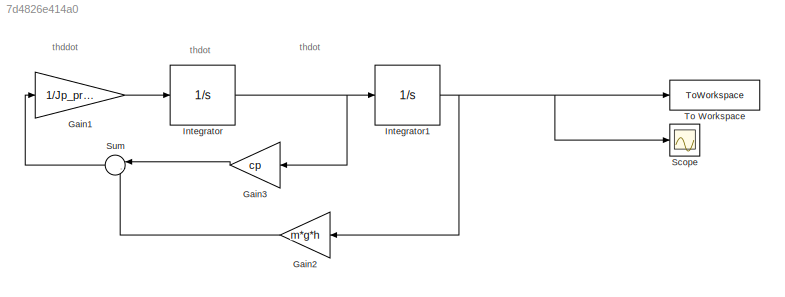
MODEL slx_7d4826e414a0
KIND model
CONFIG AbsTol = auto
CONFIG EnableMultiTasking = off
CONFIG FixedStep = auto
CONFIG MaxStep = auto
CONFIG MinStep = auto
CONFIG RelTol = 1e-6
CONFIG SampleTimeConstraint = Unconstrained
CONFIG SolverName = VariableStepAuto
CONFIG StartTime = 0.0
CONFIG StopTime = 30
BLOCK [Gain] Gain1
  Gain = 1/Jp_prime
BLOCK [Gain] Gain2
  Gain = m*g*h
BLOCK [Gain] Gain3
  Gain = cp
BLOCK [Integrator] Integrator
  Ports = [1, 1]
BLOCK [Integrator] Integrator1
  InitialCondition = th0
  Ports = [1, 1]
BLOCK [Scope] Scope
  Floating = off
  NumInputPorts = 1
  Ports = [1]
  ScopeSpecificationString = Simulink.scopes.TimeScopeBlockCfg('CurrentConfiguration', extmgr.ConfigurationSet(extmgr.Configuration('Core','General UI',true),extmgr.Configuration('Core','Source UI',true),extmgr.Configuration('Sources','WiredSimulink',true),extmgr.Configuration('Visuals','Time Domain',true,'SerializedDisplays',{struct('MinYLimReal','-0.3531','MaxYLimReal','0.38182','YLabelReal','','MinYLimMag','0.00000','MaxYL...<+1359ch>
BLOCK [Sum] Sum
  Inputs = |--
  Ports = [2, 1]
BLOCK [ToWorkspace] To Workspace
  FixptAsFi = on
  MaxDataPoints = inf
  Ports = [1]
  SampleTime = -1
  SaveFormat = Timeseries
  VariableName = th
ANNOTATION (root): thddot
ANNOTATION (root): thdot
LINE Gain1:1 -> Integrator:1
LINE Gain2:1 -> Sum:2
LINE Gain3:1 -> Sum:1
NET Integrator1:1 -> Gain2:1, Scope:1, To Workspace:1
NET Integrator:1 -> Gain3:1, Integrator1:1
LINE Sum:1 -> Gain1:1
note: NET lines group one-source signal fan-out (src -> all destinations, sorted); 1:1 wires keep LINE
